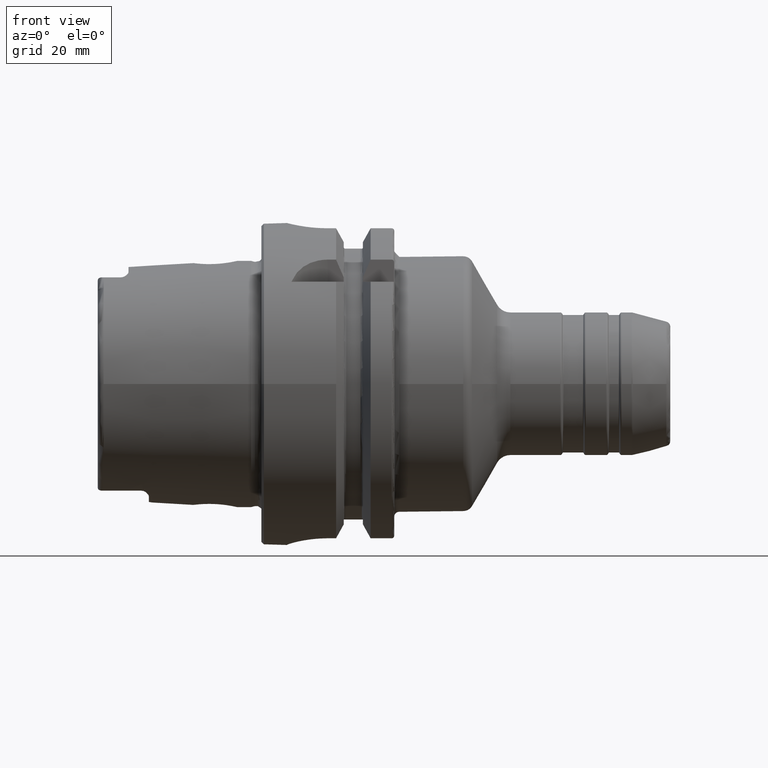
[diagram: clean part render]
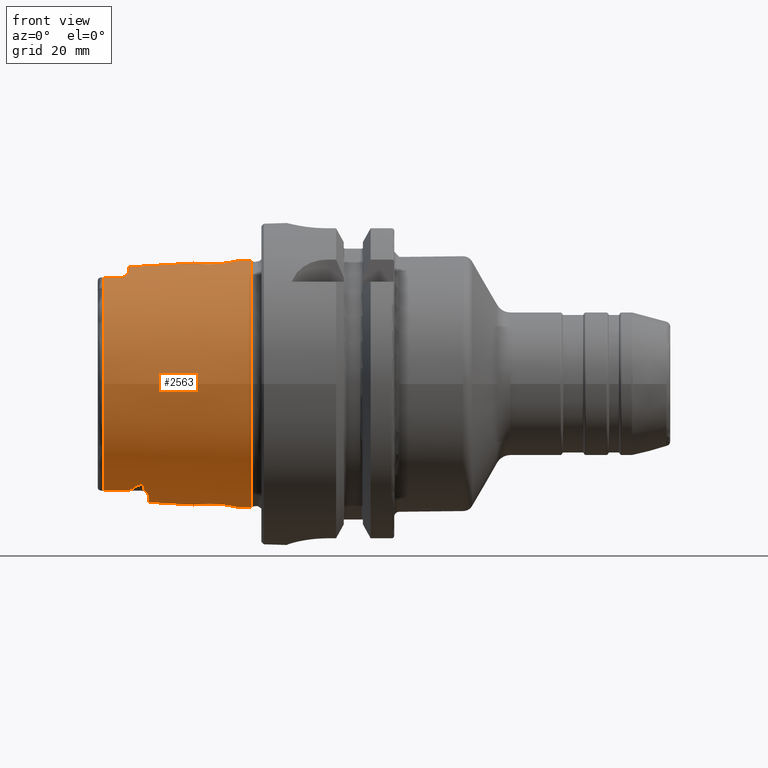
[diagram: same view with one face highlighted and labeled with its STEP entity id]
A machine part, front view. The second image highlights one B-rep face of the part: STEP entity #2563.
In plain terms, the highlighted conical surface has half-angle 2.868 deg.
Its self-contained STEP definition (entity closure, byte-faithful):
#18=B_SPLINE_CURVE_WITH_KNOTS('',3,(#4190,#4191,#4192,#4193,#4194,#4195,
#4196,#4197,#4198,#4199,#4200,#4201,#4202,#4203,#4204,#4205,#4206,#4207),
 .UNSPECIFIED.,.F.,.F.,(4,2,2,2,2,2,2,2,4),(1.51539778880184,1.52261182847659,
1.52982586815134,1.54425394750083,1.60399250706955,1.66373106663827,1.83461413050895,
2.00549719437962,2.0934503680651),.UNSPECIFIED.);
#20=B_SPLINE_CURVE_WITH_KNOTS('',3,(#4238,#4239,#4240,#4241,#4242,#4243,
#4244,#4245),.UNSPECIFIED.,.F.,.F.,(4,2,2,4),(1.77153596711132,1.83492838643131,
2.00584149209106,2.09371558288111),.UNSPECIFIED.);
#21=B_SPLINE_CURVE_WITH_KNOTS('',3,(#4264,#4265,#4266,#4267,#4268,#4269,
#4270,#4271),.UNSPECIFIED.,.F.,.F.,(4,2,2,4),(0.937604543168423,1.02547863395848,
1.19639173961822,1.25978415893822),.UNSPECIFIED.);
#25=B_SPLINE_CURVE_WITH_KNOTS('',3,(#4403,#4404,#4405,#4406,#4407,#4408,
#4409,#4410,#4411,#4412,#4413,#4414,#4415,#4416,#4417,#4418,#4419,#4420,
#4421,#4422,#4423),.UNSPECIFIED.,.T.,.F.,(4,1,1,1,1,1,1,1,1,1,1,1,1,1,1,
1,1,1,4),(-2.26557970640445,-2.10375258451842,-1.94192546263239,-1.86101190168937,
-1.78009834074636,-1.61827121886032,-1.45644409697429,-1.37553053603127,
-1.29461697508826,-1.18673222716424,-1.07884747924022,-0.970962731316194,
-0.863077983392173,-0.755193235468151,-0.647308487544129,-0.485481365658097,
-0.323654243772065,-0.161827121886032,0.),.UNSPECIFIED.);
#26=B_SPLINE_CURVE_WITH_KNOTS('',3,(#4434,#4435,#4436,#4437,#4438,#4439,
#4440,#4441,#4442,#4443,#4444,#4445,#4446,#4447,#4448,#4449,#4450,#4451),
 .UNSPECIFIED.,.F.,.F.,(4,2,2,2,2,2,2,2,4),(0.937345209538583,1.02529838322405,
1.19618144709472,1.3670645109654,1.42680307053412,1.48654163010284,1.50096970945234,
1.50818374912708,1.51539778880183),.UNSPECIFIED.);
#27=B_SPLINE_CURVE_WITH_KNOTS('',3,(#4457,#4458,#4459,#4460,#4461,#4462,
#4463,#4464,#4465,#4466,#4467,#4468,#4469,#4470,#4471,#4472,#4473,#4474),
 .UNSPECIFIED.,.F.,.F.,(4,2,2,2,2,2,2,2,4),(0.,0.0903555875079969,0.135533381261995,
0.180711175015994,0.191679253692351,0.19716329303053,0.202647332368709,
0.208141673454593,0.210684760739668),.UNSPECIFIED.);
#28=B_SPLINE_CURVE_WITH_KNOTS('',3,(#4476,#4477,#4478,#4479,#4480,#4481,
#4482,#4483,#4484,#4485),.UNSPECIFIED.,.F.,.F.,(4,2,2,2,4),(0.278659319230644,
0.333918541832918,0.442805459609059,0.482035165304725,0.500954004489182),
 .UNSPECIFIED.);
#29=B_SPLINE_CURVE_WITH_KNOTS('',3,(#4489,#4490,#4491,#4492,#4493,#4494,
#4495,#4496,#4497,#4498,#4499,#4500),.UNSPECIFIED.,.F.,.F.,(4,2,2,2,2,4),
(0.500954004487676,0.50386398744684,0.528331134037123,0.580812359186529,
0.712749669755937,0.726249722962502),.UNSPECIFIED.);
#30=B_SPLINE_CURVE_WITH_KNOTS('',3,(#4502,#4503,#4504,#4505,#4506,#4507,
#4508,#4509,#4510,#4511,#4512,#4513,#4514,#4515,#4516,#4517,#4518,#4519),
 .UNSPECIFIED.,.F.,.F.,(4,2,2,2,2,2,2,2,4),(0.599581967500703,0.602125054785784,
0.607619395871668,0.613103435209847,0.618587474548027,0.629555553224386,
0.674733346978385,0.719911140732385,0.810266728240384),.UNSPECIFIED.);
#31=B_SPLINE_CURVE_WITH_KNOTS('',3,(#4525,#4526,#4527,#4528,#4529,#4530,
#4531,#4532,#4533,#4534,#4535,#4536,#4537,#4538),.UNSPECIFIED.,.F.,.F.,
(4,2,2,2,2,2,4),(0.612787130114313,0.692070205833102,0.846913877835571,
0.923866042650838,0.97973233720279,1.02631946127952,1.05465853457734),
 .UNSPECIFIED.);
#32=B_SPLINE_CURVE_WITH_KNOTS('',3,(#4541,#4542,#4543,#4544,#4545,#4546,
#4547,#4548,#4549,#4550,#4551,#4552,#4553,#4554),.UNSPECIFIED.,.F.,.F.,
(4,2,2,2,2,2,4),(0.413162960284885,0.443293122422243,0.485069563612126,
0.532728756474865,0.604908335246701,0.737193690325506,0.813919818316776),
 .UNSPECIFIED.);
#33=B_SPLINE_CURVE_WITH_KNOTS('',3,(#4557,#4558,#4559,#4560,#4561,#4562,
#4563,#4564,#4565,#4566,#4567,#4568,#4569,#4570,#4571,#4572,#4573,#4574,
#4575,#4576,#4577),.UNSPECIFIED.,.T.,.F.,(4,1,1,1,1,1,1,1,1,1,1,1,1,1,1,
1,1,1,4),(-2.26557970640445,-2.10375258451842,-1.94192546263239,-1.78009834074636,
-1.61827121886032,-1.45644409697429,-1.37553053603127,-1.29461697508826,
-1.18673222716424,-1.07884747924022,-1.0249051052782,-0.970962731316194,
-0.755193235468151,-0.647308487544129,-0.485481365658097,-0.404567804715081,
-0.323654243772065,-0.161827121886032,0.),.UNSPECIFIED.);
#79=(
BOUNDED_CURVE()
B_SPLINE_CURVE(2,(#4453,#4454,#4455),.UNSPECIFIED.,.F.,.F.)
B_SPLINE_CURVE_WITH_KNOTS((3,3),(0.409626932432081,0.704053423593105),
 .UNSPECIFIED.)
CURVE()
GEOMETRIC_REPRESENTATION_ITEM()
RATIONAL_B_SPLINE_CURVE((1.00336468859939,1.00336468859939,1.00162640098087))
REPRESENTATION_ITEM('')
);
#80=(
BOUNDED_CURVE()
B_SPLINE_CURVE(2,(#4520,#4521,#4522),.UNSPECIFIED.,.F.,.F.)
B_SPLINE_CURVE_WITH_KNOTS((3,3),(0.115200441271059,0.409626932432082),
 .UNSPECIFIED.)
CURVE()
GEOMETRIC_REPRESENTATION_ITEM()
RATIONAL_B_SPLINE_CURVE((1.00162640098087,1.00336468859939,1.00336468859939))
REPRESENTATION_ITEM('')
);
#102=FACE_BOUND('',#622,.T.);
#103=FACE_BOUND('',#623,.T.);
#230=LINE('',#4430,#345);
#345=VECTOR('',#3412,23.4974838444284);
#425=CONICAL_SURFACE('',#2837,23.4974838444284,0.0500583457465973);
#482=FACE_OUTER_BOUND('',#621,.T.);
#621=EDGE_LOOP('',(#1954,#1955,#1956,#1957,#1958,#1959,#1960,#1961,#1962,
#1963,#1964,#1965,#1966,#1967,#1968,#1969,#1970,#1971,#1972,#1973,#1974));
#622=EDGE_LOOP('',(#1975));
#623=EDGE_LOOP('',(#1976));
#832=CIRCLE('',#2838,24.2204308617234);
#833=CIRCLE('',#2839,24.2204308617234);
#834=CIRCLE('',#2840,22.7745368271334);
#835=CIRCLE('',#2841,23.2184268537074);
#836=CIRCLE('',#2842,22.7745368271334);
#837=CIRCLE('',#2843,23.0180260521042);
#838=CIRCLE('',#2844,22.7745368271334);
#1055=VERTEX_POINT('',#4176);
#1056=VERTEX_POINT('',#4189);
#1062=VERTEX_POINT('',#4224);
#1063=VERTEX_POINT('',#4237);
#1069=VERTEX_POINT('',#4261);
#1070=VERTEX_POINT('',#4263);
#1073=VERTEX_POINT('',#4374);
#1076=VERTEX_POINT('',#4425);
#1077=VERTEX_POINT('',#4426);
#1078=VERTEX_POINT('',#4429);
#1079=VERTEX_POINT('',#4431);
#1080=VERTEX_POINT('',#4433);
#1081=VERTEX_POINT('',#4452);
#1082=VERTEX_POINT('',#4456);
#1083=VERTEX_POINT('',#4475);
#1084=VERTEX_POINT('',#4486);
#1085=VERTEX_POINT('',#4488);
#1086=VERTEX_POINT('',#4501);
#1087=VERTEX_POINT('',#4524);
#1088=VERTEX_POINT('',#4539);
#1089=VERTEX_POINT('',#4556);
#1378=EDGE_CURVE('',#1056,#1055,#18,.T.);
#1388=EDGE_CURVE('',#1063,#1062,#20,.T.);
#1396=EDGE_CURVE('',#1070,#1069,#21,.T.);
#1404=EDGE_CURVE('',#1073,#1073,#25,.T.);
#1405=EDGE_CURVE('',#1076,#1077,#832,.T.);
#1406=EDGE_CURVE('',#1077,#1076,#833,.T.);
#1407=EDGE_CURVE('',#1077,#1078,#230,.T.);
#1408=EDGE_CURVE('',#1078,#1079,#834,.T.);
#1409=EDGE_CURVE('',#1079,#1080,#26,.T.);
#1410=EDGE_CURVE('',#1080,#1081,#79,.T.);
#1411=EDGE_CURVE('',#1082,#1081,#27,.T.);
#1412=EDGE_CURVE('',#1083,#1082,#28,.T.);
#1413=EDGE_CURVE('',#1083,#1084,#835,.T.);
#1414=EDGE_CURVE('',#1085,#1084,#29,.T.);
#1415=EDGE_CURVE('',#1086,#1085,#30,.T.);
#1416=EDGE_CURVE('',#1086,#1056,#80,.T.);
#1417=EDGE_CURVE('',#1055,#1070,#836,.T.);
#1418=EDGE_CURVE('',#1087,#1069,#31,.T.);
#1419=EDGE_CURVE('',#1087,#1088,#837,.T.);
#1420=EDGE_CURVE('',#1063,#1088,#32,.T.);
#1421=EDGE_CURVE('',#1062,#1078,#838,.T.);
#1422=EDGE_CURVE('',#1089,#1089,#33,.T.);
#1954=ORIENTED_EDGE('',*,*,#1405,.F.);
#1955=ORIENTED_EDGE('',*,*,#1406,.F.);
#1956=ORIENTED_EDGE('',*,*,#1407,.T.);
#1957=ORIENTED_EDGE('',*,*,#1408,.T.);
#1958=ORIENTED_EDGE('',*,*,#1409,.T.);
#1959=ORIENTED_EDGE('',*,*,#1410,.T.);
#1960=ORIENTED_EDGE('',*,*,#1411,.F.);
#1961=ORIENTED_EDGE('',*,*,#1412,.F.);
#1962=ORIENTED_EDGE('',*,*,#1413,.T.);
#1963=ORIENTED_EDGE('',*,*,#1414,.F.);
#1964=ORIENTED_EDGE('',*,*,#1415,.F.);
#1965=ORIENTED_EDGE('',*,*,#1416,.T.);
#1966=ORIENTED_EDGE('',*,*,#1378,.T.);
#1967=ORIENTED_EDGE('',*,*,#1417,.T.);
#1968=ORIENTED_EDGE('',*,*,#1396,.T.);
#1969=ORIENTED_EDGE('',*,*,#1418,.F.);
#1970=ORIENTED_EDGE('',*,*,#1419,.T.);
#1971=ORIENTED_EDGE('',*,*,#1420,.F.);
#1972=ORIENTED_EDGE('',*,*,#1388,.T.);
#1973=ORIENTED_EDGE('',*,*,#1421,.T.);
#1974=ORIENTED_EDGE('',*,*,#1407,.F.);
#1975=ORIENTED_EDGE('',*,*,#1422,.F.);
#1976=ORIENTED_EDGE('',*,*,#1404,.F.);
#2563=ADVANCED_FACE('',(#482,#102,#103),#425,.T.);
#2837=AXIS2_PLACEMENT_3D('',#4424,#3406,#3407);
#2838=AXIS2_PLACEMENT_3D('',#4427,#3408,#3409);
#2839=AXIS2_PLACEMENT_3D('',#4428,#3410,#3411);
#2840=AXIS2_PLACEMENT_3D('',#4432,#3413,#3414);
#2841=AXIS2_PLACEMENT_3D('',#4487,#3415,#3416);
#2842=AXIS2_PLACEMENT_3D('',#4523,#3417,#3418);
#2843=AXIS2_PLACEMENT_3D('',#4540,#3419,#3420);
#2844=AXIS2_PLACEMENT_3D('',#4555,#3421,#3422);
#3406=DIRECTION('center_axis',(1.,0.,0.));
#3407=DIRECTION('ref_axis',(0.,1.,0.));
#3408=DIRECTION('center_axis',(1.,0.,0.));
#3409=DIRECTION('ref_axis',(0.,0.,-1.));
#3410=DIRECTION('center_axis',(1.,0.,0.));
#3411=DIRECTION('ref_axis',(0.,0.,-1.));
#3412=DIRECTION('',(-0.998747342623037,0.0500374420151821,6.1278193201414E-18));
#3413=DIRECTION('center_axis',(1.,0.,0.));
#3414=DIRECTION('ref_axis',(0.,0.,-1.));
#3415=DIRECTION('center_axis',(1.,0.,0.));
#3416=DIRECTION('ref_axis',(0.,1.,0.));
#3417=DIRECTION('center_axis',(1.,0.,0.));
#3418=DIRECTION('ref_axis',(0.,0.,-1.));
#3419=DIRECTION('center_axis',(1.,0.,0.));
#3420=DIRECTION('ref_axis',(0.,1.,0.));
#3421=DIRECTION('center_axis',(1.,0.,0.));
#3422=DIRECTION('ref_axis',(0.,0.,-1.));
#4176=CARTESIAN_POINT('',(-30.8600449304182,9.1175788960984,-20.8698175067219));
#4189=CARTESIAN_POINT('',(-25.0978148584663,10.4556386714692,-20.5570425901345));
#4190=CARTESIAN_POINT('Ctrl Pts',(-25.0978148584663,10.4556386714692,-20.5570425901345));
#4191=CARTESIAN_POINT('Ctrl Pts',(-25.0978148584663,10.434204936409,-20.5679441285336));
#4192=CARTESIAN_POINT('Ctrl Pts',(-25.1030756340098,10.4135952575897,-20.5780886428205));
#4193=CARTESIAN_POINT('Ctrl Pts',(-25.1212840412595,10.3742534446523,-20.5969290505833));
#4194=CARTESIAN_POINT('Ctrl Pts',(-25.1342239230183,10.3555186194877,-20.605626813756));
#4195=CARTESIAN_POINT('Ctrl Pts',(-25.1803732229877,10.3024924958122,-20.6296329719333));
#4196=CARTESIAN_POINT('Ctrl Pts',(-25.2208246412482,10.2713306216733,-20.6428847988051));
#4197=CARTESIAN_POINT('Ctrl Pts',(-25.4220827984543,10.138547720478,-20.6974983203461));
#4198=CARTESIAN_POINT('Ctrl Pts',(-25.6226314158802,10.0671936374525,-20.7209199758995));
#4199=CARTESIAN_POINT('Ctrl Pts',(-26.0321916388999,9.93536599911188,-20.7617058242075));
#4200=CARTESIAN_POINT('Ctrl Pts',(-26.2430784477608,9.8799536310347,-20.7763753921414));
#4201=CARTESIAN_POINT('Ctrl Pts',(-26.9889879780946,9.69930871486834,-20.8204848534175));
#4202=CARTESIAN_POINT('Ctrl Pts',(-27.5600080230791,9.59491882494626,-20.8370744460606));
#4203=CARTESIAN_POINT('Ctrl Pts',(-28.7253632733501,9.40260250516234,-20.8605355436413));
#4204=CARTESIAN_POINT('Ctrl Pts',(-29.3200764392133,9.31683719872072,-20.8662835753638));
#4205=CARTESIAN_POINT('Ctrl Pts',(-30.2333885582946,9.19553638844306,-20.8699331931734));
#4206=CARTESIAN_POINT('Ctrl Pts',(-30.5458909643235,9.15590567779843,-20.8702489912062));
#4207=CARTESIAN_POINT('Ctrl Pts',(-30.8600449304182,9.11757889609839,-20.8698175067219));
#4224=CARTESIAN_POINT('',(-30.8600449304182,-9.1175788960984,20.8698175067219));
#4237=CARTESIAN_POINT('',(-27.5000000000755,-9.61067758640857,20.8329168403914));
#4238=CARTESIAN_POINT('Ctrl Pts',(-27.500000000078,-9.61067758642201,20.8329168403892));
#4239=CARTESIAN_POINT('Ctrl Pts',(-27.7125737548958,-9.57148784129481,20.8392673030342));
#4240=CARTESIAN_POINT('Ctrl Pts',(-27.9270578144772,-9.53434241390281,20.8444654011212));
#4241=CARTESIAN_POINT('Ctrl Pts',(-28.7259960474271,-9.40250589525003,20.8605443506117));
#4242=CARTESIAN_POINT('Ctrl Pts',(-29.3208153495341,-9.3167323629879,20.8662898636256));
#4243=CARTESIAN_POINT('Ctrl Pts',(-30.2339565561898,-9.19546438357122,20.8699337533607));
#4244=CARTESIAN_POINT('Ctrl Pts',(-30.5461763429502,-9.15587086160794,20.8702485992441));
#4245=CARTESIAN_POINT('Ctrl Pts',(-30.8600449304182,-9.11757889609839,20.8698175067219));
#4261=CARTESIAN_POINT('',(-27.5000000000755,9.61067758640857,20.8329168403914));
#4263=CARTESIAN_POINT('',(-30.8600449304182,9.1175788960984,20.8698175067219));
#4264=CARTESIAN_POINT('Ctrl Pts',(-30.8600449304182,9.11757889609839,20.8698175067219));
#4265=CARTESIAN_POINT('Ctrl Pts',(-30.5461763429502,9.15587086160794,20.8702485992441));
#4266=CARTESIAN_POINT('Ctrl Pts',(-30.2339565561898,9.1954643835712,20.8699337533607));
#4267=CARTESIAN_POINT('Ctrl Pts',(-29.3208153495341,9.31673236298789,20.8662898636256));
#4268=CARTESIAN_POINT('Ctrl Pts',(-28.7259960474271,9.40250589525004,20.8605443506117));
#4269=CARTESIAN_POINT('Ctrl Pts',(-27.9270578144772,9.53434241390281,20.8444654011213));
#4270=CARTESIAN_POINT('Ctrl Pts',(-27.7125737548958,9.57148784129481,20.8392673030342));
#4271=CARTESIAN_POINT('Ctrl Pts',(-27.500000000078,9.61067758642201,20.8329168403892));
#4374=CARTESIAN_POINT('',(-9.02925407423461,4.24282684078987,-23.4881339907642));
#4403=CARTESIAN_POINT('Ctrl Pts',(-9.02925407423461,4.24282684078987,-23.4881339907642));
#4404=CARTESIAN_POINT('Ctrl Pts',(-8.41794937729802,4.24763962021184,-23.5183867686952));
#4405=CARTESIAN_POINT('Ctrl Pts',(-7.09719062335626,3.96214027152736,-23.6400391343347));
#4406=CARTESIAN_POINT('Ctrl Pts',(-5.85872384144614,2.97350456469995,-23.8514262488192));
#4407=CARTESIAN_POINT('Ctrl Pts',(-5.16063731756733,1.91003066646729,-23.9915936511341));
#4408=CARTESIAN_POINT('Ctrl Pts',(-4.71967908413408,0.667233683255142,-24.0892210412975));
#4409=CARTESIAN_POINT('Ctrl Pts',(-4.69487671176925,-0.887140287368457,
-24.0946920123011));
#4410=CARTESIAN_POINT('Ctrl Pts',(-5.41575081787389,-2.43754371827964,-23.9347651451498));
#4411=CARTESIAN_POINT('Ctrl Pts',(-6.27200380070453,-3.29839456985501,-23.7808774616528));
#4412=CARTESIAN_POINT('Ctrl Pts',(-7.16157899956841,-3.8911177348338,-23.6460473005722));
#4413=CARTESIAN_POINT('Ctrl Pts',(-8.32145673061719,-4.25090987526345,-23.5228217546797));
#4414=CARTESIAN_POINT('Ctrl Pts',(-9.55257943298201,-4.26858049401254,-23.456823819944));
#4415=CARTESIAN_POINT('Ctrl Pts',(-10.8313666496774,-3.90479981259957,-23.4573341216261));
#4416=CARTESIAN_POINT('Ctrl Pts',(-11.8961422246607,-3.1841113544275,-23.5146565929276));
#4417=CARTESIAN_POINT('Ctrl Pts',(-12.7003698798572,-2.21954630167764,-23.5891273633448));
#4418=CARTESIAN_POINT('Ctrl Pts',(-13.2855020445789,-0.774775065590821,
-23.6608303251767));
#4419=CARTESIAN_POINT('Ctrl Pts',(-13.2993151465013,0.893979362185892,-23.6627026291545));
#4420=CARTESIAN_POINT('Ctrl Pts',(-12.4532300975689,2.72994365265342,-23.5583564408809));
#4421=CARTESIAN_POINT('Ctrl Pts',(-10.9641321027099,3.91707089294868,-23.4490088113463));
#4422=CARTESIAN_POINT('Ctrl Pts',(-9.64055877117117,4.23801406136791,-23.4578812128331));
#4423=CARTESIAN_POINT('Ctrl Pts',(-9.02925407423461,4.24282684078988,-23.4881339907642));
#4424=CARTESIAN_POINT('Origin',(-16.4300224652091,0.,0.));
#4425=CARTESIAN_POINT('',(-2.,24.2204308617234,0.));
#4426=CARTESIAN_POINT('',(-2.,-24.2204308617234,-2.96614731287794E-15));
#4427=CARTESIAN_POINT('Origin',(-2.,0.,0.));
#4428=CARTESIAN_POINT('Origin',(-2.,0.,0.));
#4429=CARTESIAN_POINT('',(-30.8600449304182,-22.7745368271334,-2.78907636274124E-15));
#4430=CARTESIAN_POINT('',(-16.4300224652091,-23.4974838444284,-2.87761183780959E-15));
#4431=CARTESIAN_POINT('',(-30.8600449304182,-9.1175788960984,-20.8698175067219));
#4432=CARTESIAN_POINT('Origin',(-30.8600449304182,0.,0.));
#4433=CARTESIAN_POINT('',(-25.0978148584663,-10.4556386714692,-20.5570425901345));
#4434=CARTESIAN_POINT('Ctrl Pts',(-30.8600449304182,-9.11757889609839,-20.8698175067219));
#4435=CARTESIAN_POINT('Ctrl Pts',(-30.5458909643235,-9.15590567779842,-20.8702489912062));
#4436=CARTESIAN_POINT('Ctrl Pts',(-30.2333885582947,-9.19553638844306,-20.8699331931734));
#4437=CARTESIAN_POINT('Ctrl Pts',(-29.3200764392134,-9.31683719872071,-20.8662835753638));
#4438=CARTESIAN_POINT('Ctrl Pts',(-28.7253632733503,-9.40260250516232,-20.8605355436413));
#4439=CARTESIAN_POINT('Ctrl Pts',(-27.5600080230793,-9.59491882494623,-20.8370744460606));
#4440=CARTESIAN_POINT('Ctrl Pts',(-26.9889879780948,-9.69930871486833,-20.8204848534175));
#4441=CARTESIAN_POINT('Ctrl Pts',(-26.243078447761,-9.87995363103469,-20.7763753921414));
#4442=CARTESIAN_POINT('Ctrl Pts',(-26.0321916389,-9.93536599911181,-20.7617058242075));
#4443=CARTESIAN_POINT('Ctrl Pts',(-25.6226314158803,-10.0671936374524,-20.7209199758996));
#4444=CARTESIAN_POINT('Ctrl Pts',(-25.4220827984544,-10.138547720478,-20.6974983203461));
#4445=CARTESIAN_POINT('Ctrl Pts',(-25.2208246412483,-10.2713306216733,-20.6428847988051));
#4446=CARTESIAN_POINT('Ctrl Pts',(-25.1803732229877,-10.3024924958121,-20.6296329719333));
#4447=CARTESIAN_POINT('Ctrl Pts',(-25.1342239230183,-10.3555186194877,-20.6056268137561));
#4448=CARTESIAN_POINT('Ctrl Pts',(-25.1212840412597,-10.3742534446523,-20.5969290505833));
#4449=CARTESIAN_POINT('Ctrl Pts',(-25.10307563401,-10.4135952575897,-20.5780886428205));
#4450=CARTESIAN_POINT('Ctrl Pts',(-25.0978148584663,-10.434204936409,-20.5679441285336));
#4451=CARTESIAN_POINT('Ctrl Pts',(-25.0978148584663,-10.4556386714692,-20.5570425901345));
#4452=CARTESIAN_POINT('',(-23.5,-12.1698923613067,-19.6851459107563));
#4453=CARTESIAN_POINT('Ctrl Pts',(-25.0978148584663,-10.4556386714692,-20.5570425901345));
#4454=CARTESIAN_POINT('Ctrl Pts',(-25.0978148584663,-11.3112805797553,-20.1218495128239));
#4455=CARTESIAN_POINT('Ctrl Pts',(-23.5,-12.1698923613067,-19.6851459107563));
#4456=CARTESIAN_POINT('',(-22.9409864229987,-10.5046262057925,-20.6533579718259));
#4457=CARTESIAN_POINT('Ctrl Pts',(-22.9409864229987,-10.5046262057925,-20.6533579718259));
#4458=CARTESIAN_POINT('Ctrl Pts',(-22.9409864229987,-10.7730829666602,-20.516816595398));
#4459=CARTESIAN_POINT('Ctrl Pts',(-22.9574206817668,-11.0623666606509,-20.3616089931375));
#4460=CARTESIAN_POINT('Ctrl Pts',(-23.0214299513488,-11.4761009466796,-20.1257517714531));
#4461=CARTESIAN_POINT('Ctrl Pts',(-23.0491283200772,-11.6099871059181,-20.0471312410654));
#4462=CARTESIAN_POINT('Ctrl Pts',(-23.1253497318037,-11.8635092488451,-19.8937049027563));
#4463=CARTESIAN_POINT('Ctrl Pts',(-23.1681553584466,-11.9845149642791,-19.8183788237048));
#4464=CARTESIAN_POINT('Ctrl Pts',(-23.2720205567489,-12.1145084587468,-19.7327054731899));
#4465=CARTESIAN_POINT('Ctrl Pts',(-23.2970638659452,-12.1405120406692,-19.7152346163683));
#4466=CARTESIAN_POINT('Ctrl Pts',(-23.340824213029,-12.1694983830269,-19.6947680043585));
#4467=CARTESIAN_POINT('Ctrl Pts',(-23.3564336502031,-12.1775072041959,-19.6888951705931));
#4468=CARTESIAN_POINT('Ctrl Pts',(-23.3894992563298,-12.1884299822762,-19.6801867490419));
#4469=CARTESIAN_POINT('Ctrl Pts',(-23.4069516148396,-12.191352087042,-19.6773469156348));
#4470=CARTESIAN_POINT('Ctrl Pts',(-23.4435003757557,-12.1903876993059,-19.675790353909));
#4471=CARTESIAN_POINT('Ctrl Pts',(-23.4609883159786,-12.1865341044229,-19.6771480362853));
#4472=CARTESIAN_POINT('Ctrl Pts',(-23.4852443648865,-12.1772664781571,-19.6814547071094));
#4473=CARTESIAN_POINT('Ctrl Pts',(-23.4927247382132,-12.1738018414638,-19.6831574869965));
#4474=CARTESIAN_POINT('Ctrl Pts',(-23.5,-12.1698923613067,-19.6851459107563));
#4475=CARTESIAN_POINT('',(-22.,-7.4031250016059,-22.0065691504051));
#4476=CARTESIAN_POINT('Ctrl Pts',(-22.,-7.4031250016064,-22.0065691504049));
#4477=CARTESIAN_POINT('Ctrl Pts',(-22.,-7.64154328791244,-21.9263639914758));
#4478=CARTESIAN_POINT('Ctrl Pts',(-22.0282316966018,-7.93106690411137,-21.8234540350138));
#4479=CARTESIAN_POINT('Ctrl Pts',(-22.2899989017396,-8.94727995671646,-21.421774019244));
#4480=CARTESIAN_POINT('Ctrl Pts',(-22.60775210997,-9.49253651928731,-21.1610368486918));
#4481=CARTESIAN_POINT('Ctrl Pts',(-22.8524785496019,-10.0580168739411,-20.8800894739587));
#4482=CARTESIAN_POINT('Ctrl Pts',(-22.8997008986804,-10.1907353571143,-20.8128334005565));
#4483=CARTESIAN_POINT('Ctrl Pts',(-22.9350020039233,-10.381785274935,-20.7158310407179));
#4484=CARTESIAN_POINT('Ctrl Pts',(-22.9409864229987,-10.4428555441716,-20.6847755123391));
#4485=CARTESIAN_POINT('Ctrl Pts',(-22.9409864229987,-10.5046262057925,-20.6533579718259));
#4486=CARTESIAN_POINT('',(-22.,7.4031250016059,-22.0065691504051));
#4487=CARTESIAN_POINT('Origin',(-22.,0.,0.));
#4488=CARTESIAN_POINT('',(-22.9409864229987,10.5046262057925,-20.6533579718259));
#4489=CARTESIAN_POINT('Ctrl Pts',(-22.9409864229987,10.5046262057925,-20.6533579718259));
#4490=CARTESIAN_POINT('Ctrl Pts',(-22.9409864229987,10.4951250111927,-20.6581904304467));
#4491=CARTESIAN_POINT('Ctrl Pts',(-22.9408450644905,10.4856070684351,-20.6630311043921));
#4492=CARTESIAN_POINT('Ctrl Pts',(-22.9381719760295,10.3958439048842,-20.7086800932502));
#4493=CARTESIAN_POINT('Ctrl Pts',(-22.9258072553349,10.3185989460598,-20.747952822378));
#4494=CARTESIAN_POINT('Ctrl Pts',(-22.8649803787077,10.0769327863764,-20.8704196245159));
#4495=CARTESIAN_POINT('Ctrl Pts',(-22.7887679321626,9.90306802919886,-20.9581178536208));
#4496=CARTESIAN_POINT('Ctrl Pts',(-22.4484945404157,9.18505116717875,-21.3075925571443));
#4497=CARTESIAN_POINT('Ctrl Pts',(-22.0746753976002,8.47121172659649,-21.631485700585));
#4498=CARTESIAN_POINT('Ctrl Pts',(-22.0031617045067,7.56447021316982,-21.9516456669287));
#4499=CARTESIAN_POINT('Ctrl Pts',(-22.,7.48262387019776,-21.9798253150689));
#4500=CARTESIAN_POINT('Ctrl Pts',(-22.,7.40312500160694,-22.0065691504047));
#4501=CARTESIAN_POINT('',(-23.5,12.1698923613067,-19.6851459107563));
#4502=CARTESIAN_POINT('Ctrl Pts',(-23.5,12.1698923613067,-19.6851459107563));
#4503=CARTESIAN_POINT('Ctrl Pts',(-23.4927247382132,12.1738018414639,-19.6831574869965));
#4504=CARTESIAN_POINT('Ctrl Pts',(-23.4852443648865,12.1772664781571,-19.6814547071094));
#4505=CARTESIAN_POINT('Ctrl Pts',(-23.4609883159786,12.1865341044229,-19.6771480362853));
#4506=CARTESIAN_POINT('Ctrl Pts',(-23.4435003757557,12.190387699306,-19.6757903539089));
#4507=CARTESIAN_POINT('Ctrl Pts',(-23.4069516148396,12.1913520870421,-19.6773469156348));
#4508=CARTESIAN_POINT('Ctrl Pts',(-23.3894992563298,12.1884299822762,-19.6801867490419));
#4509=CARTESIAN_POINT('Ctrl Pts',(-23.3564336502031,12.1775072041959,-19.688895170593));
#4510=CARTESIAN_POINT('Ctrl Pts',(-23.340824213029,12.169498383027,-19.6947680043585));
#4511=CARTESIAN_POINT('Ctrl Pts',(-23.2970638659452,12.1405120406693,-19.7152346163683));
#4512=CARTESIAN_POINT('Ctrl Pts',(-23.2720205567489,12.1145084587468,-19.7327054731899));
#4513=CARTESIAN_POINT('Ctrl Pts',(-23.1681553584466,11.9845149642791,-19.8183788237047));
#4514=CARTESIAN_POINT('Ctrl Pts',(-23.1253497318037,11.8635092488451,-19.8937049027563));
#4515=CARTESIAN_POINT('Ctrl Pts',(-23.0491283200772,11.6099871059182,-20.0471312410654));
#4516=CARTESIAN_POINT('Ctrl Pts',(-23.0214299513488,11.4761009466796,-20.1257517714531));
#4517=CARTESIAN_POINT('Ctrl Pts',(-22.9574206817668,11.0623666606509,-20.3616089931375));
#4518=CARTESIAN_POINT('Ctrl Pts',(-22.9409864229987,10.7730829666602,-20.516816595398));
#4519=CARTESIAN_POINT('Ctrl Pts',(-22.9409864229987,10.5046262057925,-20.6533579718259));
#4520=CARTESIAN_POINT('Ctrl Pts',(-23.5,12.1698923613067,-19.6851459107563));
#4521=CARTESIAN_POINT('Ctrl Pts',(-25.0978148584663,11.3112805797553,-20.1218495128239));
#4522=CARTESIAN_POINT('Ctrl Pts',(-25.0978148584662,10.4556386714692,-20.5570425901345));
#4523=CARTESIAN_POINT('Origin',(-30.8600449304182,0.,0.));
#4524=CARTESIAN_POINT('',(-26.,7.14127219004964,21.8822246319466));
#4525=CARTESIAN_POINT('Ctrl Pts',(-26.,7.14127219004961,21.8822246319466));
#4526=CARTESIAN_POINT('Ctrl Pts',(-26.,7.38735946023371,21.801913959314));
#4527=CARTESIAN_POINT('Ctrl Pts',(-26.033972788753,7.63482296419265,21.7146832850108));
#4528=CARTESIAN_POINT('Ctrl Pts',(-26.2194423861809,8.34889404999889,21.4446815988103));
#4529=CARTESIAN_POINT('Ctrl Pts',(-26.4428793547878,8.75952114583654,21.2645357982171));
#4530=CARTESIAN_POINT('Ctrl Pts',(-26.7590254549197,9.19092879202869,21.0625769757814));
#4531=CARTESIAN_POINT('Ctrl Pts',(-26.8729708291721,9.32104212441475,20.9987774802421));
#4532=CARTESIAN_POINT('Ctrl Pts',(-27.0716948778125,9.49280512119961,20.9106159819251));
#4533=CARTESIAN_POINT('Ctrl Pts',(-27.144806553738,9.53932652154805,20.8852782118319));
#4534=CARTESIAN_POINT('Ctrl Pts',(-27.2637975599135,9.59417850538166,20.8535668796639));
#4535=CARTESIAN_POINT('Ctrl Pts',(-27.322222387454,9.61219549867679,20.8420263003947));
#4536=CARTESIAN_POINT('Ctrl Pts',(-27.4236635149584,9.61988157707407,20.8328813745288));
#4537=CARTESIAN_POINT('Ctrl Pts',(-27.4617925463603,9.61772144927266,20.8317754247499));
#4538=CARTESIAN_POINT('Ctrl Pts',(-27.5000000000779,9.61067758642203,20.8329168403892));
#4539=CARTESIAN_POINT('',(-26.,-7.14127219004964,21.8822246319466));
#4540=CARTESIAN_POINT('Origin',(-26.,0.,0.));
#4541=CARTESIAN_POINT('Ctrl Pts',(-27.500000000078,-9.610677586422,20.8329168403892));
#4542=CARTESIAN_POINT('Ctrl Pts',(-27.4634308025005,-9.61741942308555,20.8318243662782));
#4543=CARTESIAN_POINT('Ctrl Pts',(-27.4260889661871,-9.61985292316152,20.8327607188551));
#4544=CARTESIAN_POINT('Ctrl Pts',(-27.3343377981765,-9.61339298685805,20.8408051456548));
#4545=CARTESIAN_POINT('Ctrl Pts',(-27.2828394544385,-9.59996378018902,20.8498476845684));
#4546=CARTESIAN_POINT('Ctrl Pts',(-27.1765640574038,-9.55615724159004,20.8758218933212));
#4547=CARTESIAN_POINT('Ctrl Pts',(-27.111584300389,-9.51976030908576,20.8961199655304));
#4548=CARTESIAN_POINT('Ctrl Pts',(-26.9153060284285,-9.36478934458731,20.9769473005223));
#4549=CARTESIAN_POINT('Ctrl Pts',(-26.7955937204007,-9.23492374831594,21.0413520243865));
#4550=CARTESIAN_POINT('Ctrl Pts',(-26.4809422997755,-8.82026009617074,21.2370375105362));
#4551=CARTESIAN_POINT('Ctrl Pts',(-26.2539798154924,-8.42841535117176,21.4117405279022));
#4552=CARTESIAN_POINT('Ctrl Pts',(-26.0395031937781,-7.68065048502185,21.6986739773255));
#4553=CARTESIAN_POINT('Ctrl Pts',(-26.,-7.40668123592282,21.7956082905937));
#4554=CARTESIAN_POINT('Ctrl Pts',(-26.,-7.14127219004964,21.8822246319466));
#4555=CARTESIAN_POINT('Origin',(-30.8600449304182,0.,0.));
#4556=CARTESIAN_POINT('',(-9.0292540742346,4.24282684078987,23.4881339907642));
#4557=CARTESIAN_POINT('Ctrl Pts',(-9.0292540742346,4.24282684078987,23.4881339907642));
#4558=CARTESIAN_POINT('Ctrl Pts',(-9.64055877117117,4.23801406136791,23.4578812128331));
#4559=CARTESIAN_POINT('Ctrl Pts',(-10.9638730702336,3.91798236438986,23.4489970857899));
#4560=CARTESIAN_POINT('Ctrl Pts',(-12.4525958595704,2.72863690378587,23.5583136537412));
#4561=CARTESIAN_POINT('Ctrl Pts',(-13.2979904921632,0.897590812051159,23.6626376623402));
#4562=CARTESIAN_POINT('Ctrl Pts',(-13.2815658701657,-0.98999302529681,23.6604426532769));
#4563=CARTESIAN_POINT('Ctrl Pts',(-12.5283174417603,-2.51201387505666,23.5683654759453));
#4564=CARTESIAN_POINT('Ctrl Pts',(-11.6444040622836,-3.36174194412279,23.50003047831));
#4565=CARTESIAN_POINT('Ctrl Pts',(-10.7212741834396,-3.93934579023148,23.4568699868312));
#4566=CARTESIAN_POINT('Ctrl Pts',(-9.5509992773888,-4.26722573729756,23.4569375771407));
#4567=CARTESIAN_POINT('Ctrl Pts',(-8.52867241778628,-4.25003876713782,23.5122547979276));
#4568=CARTESIAN_POINT('Ctrl Pts',(-7.68780586799832,-4.05338928451488,23.5899164151454));
#4569=CARTESIAN_POINT('Ctrl Pts',(-6.48553931138608,-3.55436322843895,23.7337139580667));
#4570=CARTESIAN_POINT('Ctrl Pts',(-5.4130820429913,-2.55345835746536,23.93595268899));
#4571=CARTESIAN_POINT('Ctrl Pts',(-4.69884914086794,-0.680968659887892,
24.0937023327386));
#4572=CARTESIAN_POINT('Ctrl Pts',(-4.71937382006398,0.664900361610849,24.08935727819));
#4573=CARTESIAN_POINT('Ctrl Pts',(-5.16062521092841,1.90899044718831,23.9916071295055));
#4574=CARTESIAN_POINT('Ctrl Pts',(-5.8586063866709,2.97237256239872,23.8514805565406));
#4575=CARTESIAN_POINT('Ctrl Pts',(-7.09720951544069,3.96193589367342,23.6400338901471));
#4576=CARTESIAN_POINT('Ctrl Pts',(-8.41794937729801,4.24763962021184,23.5183867686952));
#4577=CARTESIAN_POINT('Ctrl Pts',(-9.0292540742346,4.24282684078988,23.4881339907642));